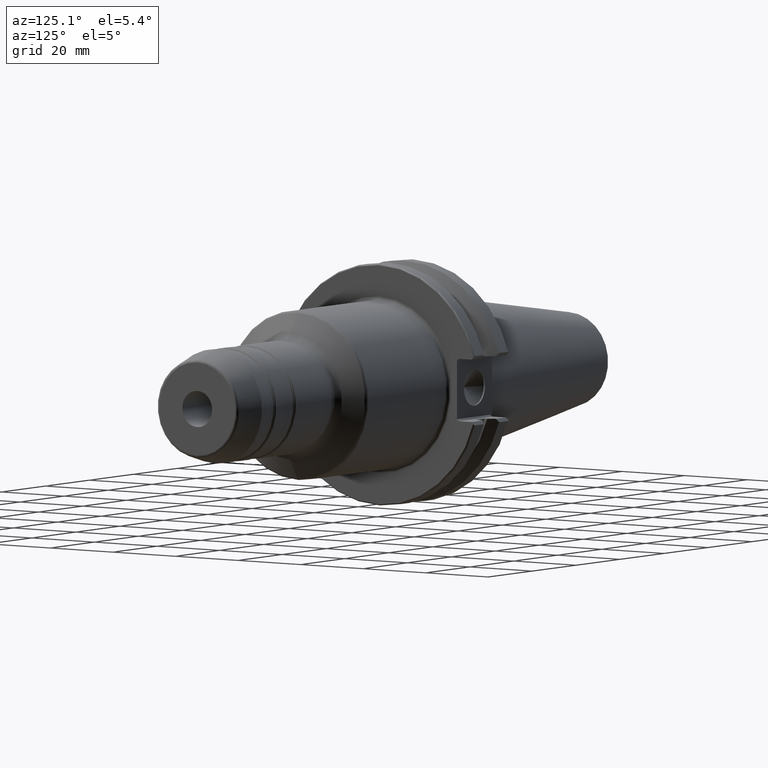
[diagram: clean part render]
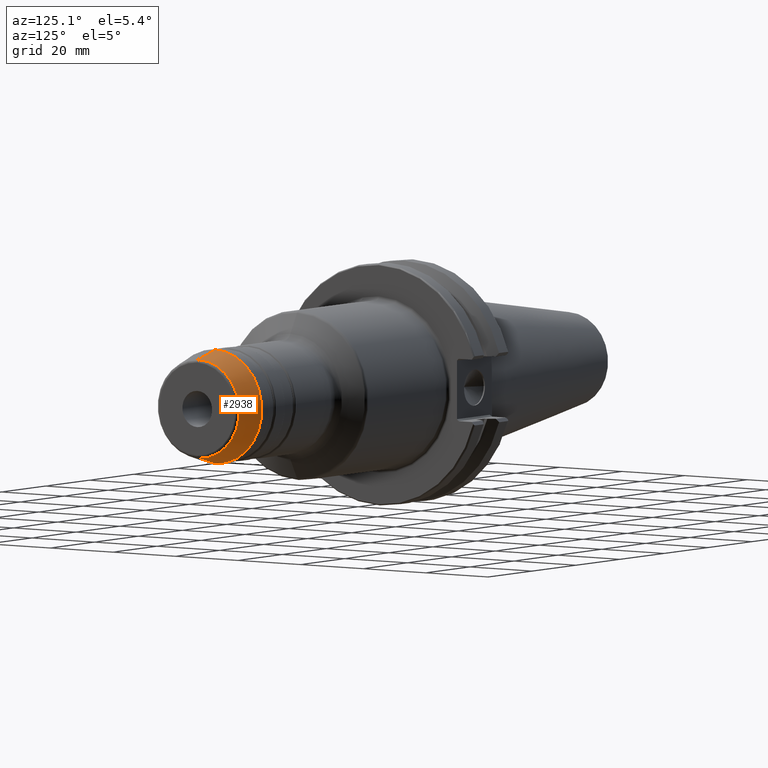
[diagram: same view with one face highlighted and labeled with its STEP entity id]
A machine part, auxiliary view. The second image highlights one B-rep face of the part: STEP entity #2938.
In plain terms, the highlighted conical surface has half-angle 15 deg.
Its self-contained STEP definition (entity closure, byte-faithful):
#635=CARTESIAN_POINT('',(9.354165477086E1,0.E0,0.E0));
#636=DIRECTION('',(1.E0,0.E0,0.E0));
#637=DIRECTION('',(0.E0,0.E0,-1.E0));
#638=AXIS2_PLACEMENT_3D('',#635,#636,#637);
#655=DIRECTION('',(-9.659258262891E-1,0.E0,-2.588190451025E-1));
#656=VECTOR('',#655,7.754633183373E0);
#657=CARTESIAN_POINT('',(1.010320552361E2,0.E0,-1.295887907065E1));
#658=LINE('',#657,#656);
#659=DIRECTION('',(-9.659258262891E-1,0.E0,2.588190451025E-1));
#660=VECTOR('',#659,7.754633183373E0);
#661=CARTESIAN_POINT('',(1.010320552361E2,0.E0,1.295887907065E1));
#662=LINE('',#661,#660);
#668=CARTESIAN_POINT('',(1.010320552361E2,0.E0,0.E0));
#669=DIRECTION('',(1.E0,0.E0,0.E0));
#670=DIRECTION('',(0.E0,0.E0,-1.E0));
#671=AXIS2_PLACEMENT_3D('',#668,#669,#670);
#1799=CARTESIAN_POINT('',(1.010320552361E2,0.E0,-1.295887907065E1));
#1801=VERTEX_POINT('',#1799);
#1802=CARTESIAN_POINT('',(9.354165477086E1,0.E0,-1.496592582629E1));
#1803=VERTEX_POINT('',#1802);
#1865=CARTESIAN_POINT('',(1.010320552361E2,0.E0,1.295887907065E1));
#1867=VERTEX_POINT('',#1865);
#1868=CARTESIAN_POINT('',(9.354165477086E1,0.E0,1.496592582629E1));
#1869=VERTEX_POINT('',#1868);
#2926=CARTESIAN_POINT('',(9.728685500347E1,0.E0,0.E0));
#2927=DIRECTION('',(-1.E0,0.E0,0.E0));
#2928=DIRECTION('',(0.E0,0.E0,-1.E0));
#2929=AXIS2_PLACEMENT_3D('',#2926,#2927,#2928);
#2930=CONICAL_SURFACE('',#2929,1.396240244847E1,1.5E1);
#2931=ORIENTED_EDGE('',*,*,#2916,.F.);
#2933=ORIENTED_EDGE('',*,*,#2932,.T.);
#2934=ORIENTED_EDGE('',*,*,#2919,.T.);
#2935=ORIENTED_EDGE('',*,*,#2890,.F.);
#2936=EDGE_LOOP('',(#2931,#2933,#2934,#2935));
#2937=FACE_OUTER_BOUND('',#2936,.F.);
#2938=ADVANCED_FACE('',(#2937),#2930,.T.);
#639=CIRCLE('',#638,1.496592582629E1);
#672=CIRCLE('',#671,1.295887907065E1);
#2890=EDGE_CURVE('',#1803,#1869,#639,.T.);
#2916=EDGE_CURVE('',#1801,#1803,#658,.T.);
#2919=EDGE_CURVE('',#1867,#1869,#662,.T.);
#2932=EDGE_CURVE('',#1801,#1867,#672,.T.);